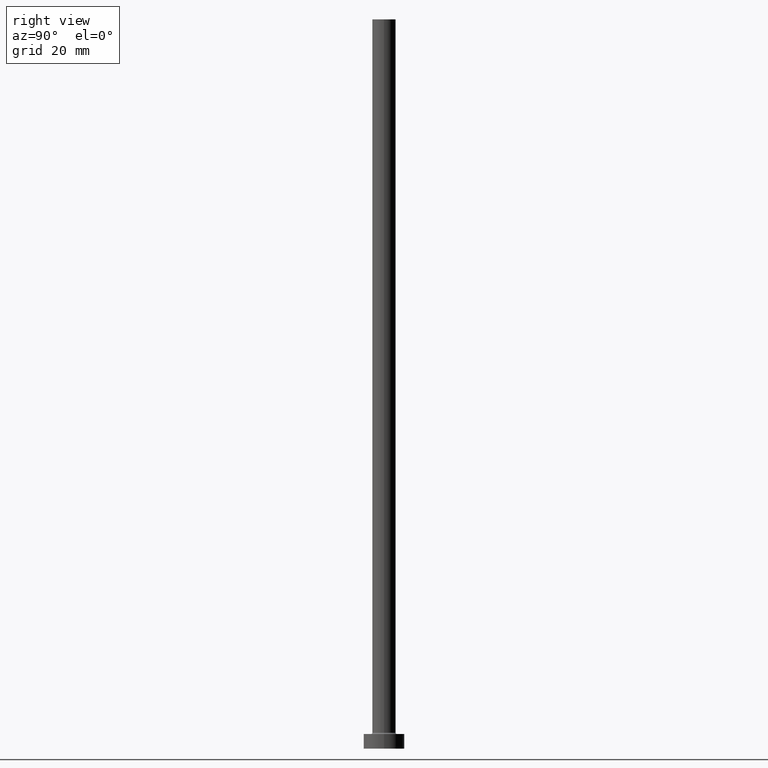
[diagram: clean part render]
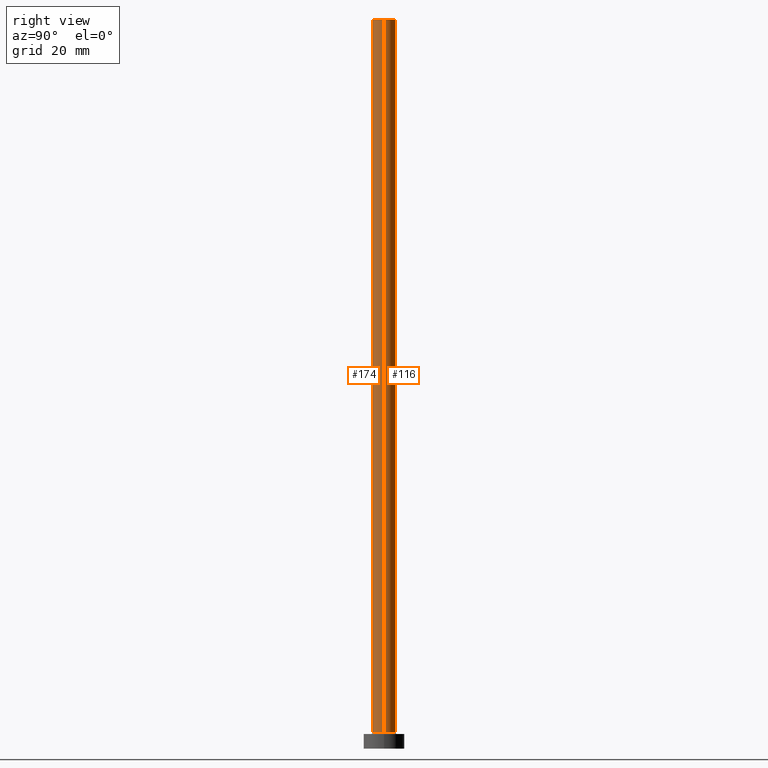
[diagram: same view with one multi-face feature highlighted, each face labeled with its STEP entity id]
A machine part, right view. The highlighted faces form ONE feature: a constant-radius fillet chain: 2 tangent blend faces with common blend radius 4 mm. The faces share edges in the B-rep.
Their STEP definitions:
[1] entity #116 (Cylinder):
#2 = AXIS2_PLACEMENT_3D ( 'NONE', #378, #49, #346 ) ;
#3 = CARTESIAN_POINT ( 'NONE',  ( 0.000000000000000000, 0.000000000000000000, 250.0000000000000000 ) ) ;
#7 = ORIENTED_EDGE ( 'NONE', *, *, #81, .T. ) ;
#35 = DIRECTION ( 'NONE',  ( -0.000000000000000000, -0.000000000000000000, -1.000000000000000000 ) ) ;
#40 = DIRECTION ( 'NONE',  ( 0.000000000000000000, 0.000000000000000000, 1.000000000000000000 ) ) ;
#42 = CIRCLE ( 'NONE', #2, 4.000000000000000000 ) ;
#49 = DIRECTION ( 'NONE',  ( 0.000000000000000000, 0.000000000000000000, 1.000000000000000000 ) ) ;
#58 = VECTOR ( 'NONE', #70, 1000.000000000000000 ) ;
#63 = VECTOR ( 'NONE', #35, 1000.000000000000000 ) ;
#70 = DIRECTION ( 'NONE',  ( -0.000000000000000000, -0.000000000000000000, -1.000000000000000000 ) ) ;
#71 = EDGE_CURVE ( 'NONE', #208, #124, #437, .T. ) ;
#81 = EDGE_CURVE ( 'NONE', #96, #202, #146, .T. ) ;
#96 = VERTEX_POINT ( 'NONE', #359 ) ;
#115 = CARTESIAN_POINT ( 'NONE',  ( 0.000000000000000000, 0.000000000000000000, 5.500000000000005329 ) ) ;
#116 = ADVANCED_FACE ( 'NONE', ( #328 ), #252, .T. ) ;
#119 = AXIS2_PLACEMENT_3D ( 'NONE', #3, #400, #179 ) ;
#124 = VERTEX_POINT ( 'NONE', #428 ) ;
#128 = EDGE_LOOP ( 'NONE', ( #228, #7, #217, #348 ) ) ;
#146 = LINE ( 'NONE', #334, #63 ) ;
#179 = DIRECTION ( 'NONE',  ( -1.000000000000000000, 0.000000000000000000, 0.000000000000000000 ) ) ;
#190 = CIRCLE ( 'NONE', #321, 4.000000000000000000 ) ;
#202 = VERTEX_POINT ( 'NONE', #325 ) ;
#208 = VERTEX_POINT ( 'NONE', #246 ) ;
#217 = ORIENTED_EDGE ( 'NONE', *, *, #311, .T. ) ;
#225 = DIRECTION ( 'NONE',  ( 1.000000000000000000, 0.000000000000000000, 0.000000000000000000 ) ) ;
#228 = ORIENTED_EDGE ( 'NONE', *, *, #384, .F. ) ;
#246 = CARTESIAN_POINT ( 'NONE',  ( -4.000000000000000000, 0.000000000000000000, 250.0000000000000000 ) ) ;
#252 = CYLINDRICAL_SURFACE ( 'NONE', #119, 4.000000000000000000 ) ;
#311 = EDGE_CURVE ( 'NONE', #202, #124, #190, .T. ) ;
#321 = AXIS2_PLACEMENT_3D ( 'NONE', #115, #40, #225 ) ;
#325 = CARTESIAN_POINT ( 'NONE',  ( 4.000000000000000000, 4.898587196589412829E-16, 5.500000000000005329 ) ) ;
#328 = FACE_OUTER_BOUND ( 'NONE', #128, .T. ) ;
#334 = CARTESIAN_POINT ( 'NONE',  ( 4.000000000000000000, 4.898587196589412829E-16, 250.0000000000000000 ) ) ;
#346 = DIRECTION ( 'NONE',  ( 1.000000000000000000, 0.000000000000000000, 0.000000000000000000 ) ) ;
#348 = ORIENTED_EDGE ( 'NONE', *, *, #71, .F. ) ;
#359 = CARTESIAN_POINT ( 'NONE',  ( 4.000000000000000000, 4.898587196589412829E-16, 250.0000000000000000 ) ) ;
#360 = CARTESIAN_POINT ( 'NONE',  ( -4.000000000000000000, 0.000000000000000000, 250.0000000000000000 ) ) ;
#378 = CARTESIAN_POINT ( 'NONE',  ( 0.000000000000000000, 0.000000000000000000, 250.0000000000000000 ) ) ;
#384 = EDGE_CURVE ( 'NONE', #96, #208, #42, .T. ) ;
#400 = DIRECTION ( 'NONE',  ( -0.000000000000000000, -0.000000000000000000, -1.000000000000000000 ) ) ;
#428 = CARTESIAN_POINT ( 'NONE',  ( -4.000000000000000000, 0.000000000000000000, 5.500000000000005329 ) ) ;
#437 = LINE ( 'NONE', #360, #58 ) ;
[2] entity #174 (Cylinder):
#15 = CARTESIAN_POINT ( 'NONE',  ( 0.000000000000000000, 0.000000000000000000, 5.500000000000005329 ) ) ;
#28 = DIRECTION ( 'NONE',  ( -1.000000000000000000, 0.000000000000000000, 0.000000000000000000 ) ) ;
#35 = DIRECTION ( 'NONE',  ( -0.000000000000000000, -0.000000000000000000, -1.000000000000000000 ) ) ;
#50 = EDGE_CURVE ( 'NONE', #124, #202, #387, .T. ) ;
#56 = ORIENTED_EDGE ( 'NONE', *, *, #81, .F. ) ;
#58 = VECTOR ( 'NONE', #70, 1000.000000000000000 ) ;
#63 = VECTOR ( 'NONE', #35, 1000.000000000000000 ) ;
#70 = DIRECTION ( 'NONE',  ( -0.000000000000000000, -0.000000000000000000, -1.000000000000000000 ) ) ;
#71 = EDGE_CURVE ( 'NONE', #208, #124, #437, .T. ) ;
#72 = ORIENTED_EDGE ( 'NONE', *, *, #71, .T. ) ;
#81 = EDGE_CURVE ( 'NONE', #96, #202, #146, .T. ) ;
#87 = DIRECTION ( 'NONE',  ( 1.000000000000000000, 0.000000000000000000, 0.000000000000000000 ) ) ;
#96 = VERTEX_POINT ( 'NONE', #359 ) ;
#104 = CIRCLE ( 'NONE', #177, 4.000000000000000000 ) ;
#111 = FACE_OUTER_BOUND ( 'NONE', #414, .T. ) ;
#124 = VERTEX_POINT ( 'NONE', #428 ) ;
#146 = LINE ( 'NONE', #334, #63 ) ;
#153 = AXIS2_PLACEMENT_3D ( 'NONE', #15, #162, #87 ) ;
#162 = DIRECTION ( 'NONE',  ( 0.000000000000000000, 0.000000000000000000, 1.000000000000000000 ) ) ;
#174 = ADVANCED_FACE ( 'NONE', ( #111 ), #260, .T. ) ;
#177 = AXIS2_PLACEMENT_3D ( 'NONE', #443, #269, #189 ) ;
#189 = DIRECTION ( 'NONE',  ( 1.000000000000000000, 0.000000000000000000, 0.000000000000000000 ) ) ;
#202 = VERTEX_POINT ( 'NONE', #325 ) ;
#208 = VERTEX_POINT ( 'NONE', #246 ) ;
#210 = AXIS2_PLACEMENT_3D ( 'NONE', #404, #357, #28 ) ;
#231 = ORIENTED_EDGE ( 'NONE', *, *, #247, .F. ) ;
#246 = CARTESIAN_POINT ( 'NONE',  ( -4.000000000000000000, 0.000000000000000000, 250.0000000000000000 ) ) ;
#247 = EDGE_CURVE ( 'NONE', #208, #96, #104, .T. ) ;
#253 = ORIENTED_EDGE ( 'NONE', *, *, #50, .T. ) ;
#260 = CYLINDRICAL_SURFACE ( 'NONE', #210, 4.000000000000000000 ) ;
#269 = DIRECTION ( 'NONE',  ( 0.000000000000000000, 0.000000000000000000, 1.000000000000000000 ) ) ;
#325 = CARTESIAN_POINT ( 'NONE',  ( 4.000000000000000000, 4.898587196589412829E-16, 5.500000000000005329 ) ) ;
#334 = CARTESIAN_POINT ( 'NONE',  ( 4.000000000000000000, 4.898587196589412829E-16, 250.0000000000000000 ) ) ;
#357 = DIRECTION ( 'NONE',  ( -0.000000000000000000, -0.000000000000000000, -1.000000000000000000 ) ) ;
#359 = CARTESIAN_POINT ( 'NONE',  ( 4.000000000000000000, 4.898587196589412829E-16, 250.0000000000000000 ) ) ;
#360 = CARTESIAN_POINT ( 'NONE',  ( -4.000000000000000000, 0.000000000000000000, 250.0000000000000000 ) ) ;
#387 = CIRCLE ( 'NONE', #153, 4.000000000000000000 ) ;
#404 = CARTESIAN_POINT ( 'NONE',  ( 0.000000000000000000, 0.000000000000000000, 250.0000000000000000 ) ) ;
#414 = EDGE_LOOP ( 'NONE', ( #56, #231, #72, #253 ) ) ;
#428 = CARTESIAN_POINT ( 'NONE',  ( -4.000000000000000000, 0.000000000000000000, 5.500000000000005329 ) ) ;
#437 = LINE ( 'NONE', #360, #58 ) ;
#443 = CARTESIAN_POINT ( 'NONE',  ( 0.000000000000000000, 0.000000000000000000, 250.0000000000000000 ) ) ;